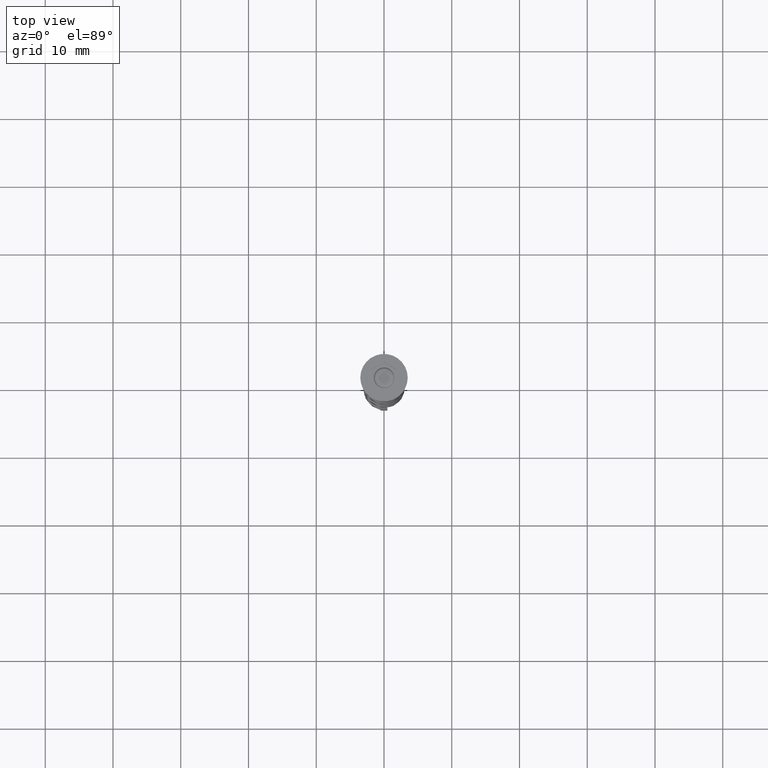
[diagram: clean part render]
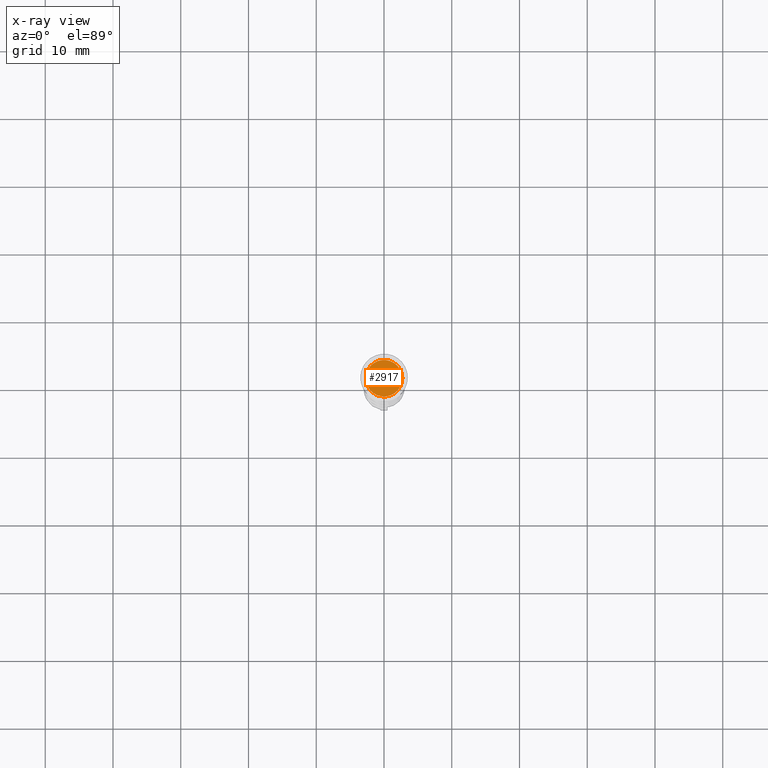
[diagram: x-ray — body ghosted, one internal face saturated and labeled with its STEP entity id]
A machine part, top view, then the same camera in x-ray: the body is ghosted and one INTERNAL B-rep face — a face not visible from any outside direction — is saturated and labeled: STEP entity #2917.
In plain terms, the highlighted planar face has unit normal (0, 0, -1).
Its self-contained STEP definition (entity closure, byte-faithful):
#20 = DIRECTION ( 'NONE',  ( -1.000000000000000000, 0.000000000000000000, 0.000000000000000000 ) ) ;
#47 = CARTESIAN_POINT ( 'NONE',  ( 0.000000000000000000, 0.000000000000000000, -5.500000000000000000 ) ) ;
#170 = AXIS2_PLACEMENT_3D ( 'NONE', #47, #1934, #875 ) ;
#253 = DIRECTION ( 'NONE',  ( -0.000000000000000000, -0.000000000000000000, 1.000000000000000000 ) ) ;
#506 = AXIS2_PLACEMENT_3D ( 'NONE', #2101, #253, #20 ) ;
#735 = CIRCLE ( 'NONE', #3345, 2.700000000000002398 ) ;
#875 = DIRECTION ( 'NONE',  ( -1.000000000000000000, 0.000000000000000000, -0.000000000000000000 ) ) ;
#1250 = ORIENTED_EDGE ( 'NONE', *, *, #2036, .T. ) ;
#1266 = EDGE_CURVE ( 'NONE', #2912, #2664, #735, .T. ) ;
#1296 = DIRECTION ( 'NONE',  ( -0.000000000000000000, -0.000000000000000000, 1.000000000000000000 ) ) ;
#1425 = PLANE ( 'NONE',  #170 ) ;
#1522 = CIRCLE ( 'NONE', #506, 2.700000000000002398 ) ;
#1934 = DIRECTION ( 'NONE',  ( 0.000000000000000000, 0.000000000000000000, -1.000000000000000000 ) ) ;
#2036 = EDGE_CURVE ( 'NONE', #2664, #2912, #1522, .T. ) ;
#2070 = ORIENTED_EDGE ( 'NONE', *, *, #1266, .T. ) ;
#2101 = CARTESIAN_POINT ( 'NONE',  ( 0.000000000000000000, 0.000000000000000000, -5.500000000000000000 ) ) ;
#2387 = EDGE_LOOP ( 'NONE', ( #1250, #2070 ) ) ;
#2664 = VERTEX_POINT ( 'NONE', #2920 ) ;
#2912 = VERTEX_POINT ( 'NONE', #3013 ) ;
#2917 = ADVANCED_FACE ( 'NONE', ( #2993 ), #1425, .F. ) ;
#2920 = CARTESIAN_POINT ( 'NONE',  ( -2.700000000000002398, 0.000000000000000000, -5.500000000000000000 ) ) ;
#2993 = FACE_OUTER_BOUND ( 'NONE', #2387, .T. ) ;
#3013 = CARTESIAN_POINT ( 'NONE',  ( 2.700000000000002398, 3.490243377569959512E-16, -5.500000000000000000 ) ) ;
#3140 = CARTESIAN_POINT ( 'NONE',  ( 0.000000000000000000, 0.000000000000000000, -5.500000000000000000 ) ) ;
#3345 = AXIS2_PLACEMENT_3D ( 'NONE', #3140, #1296, #3438 ) ;
#3438 = DIRECTION ( 'NONE',  ( -1.000000000000000000, 0.000000000000000000, 0.000000000000000000 ) ) ;